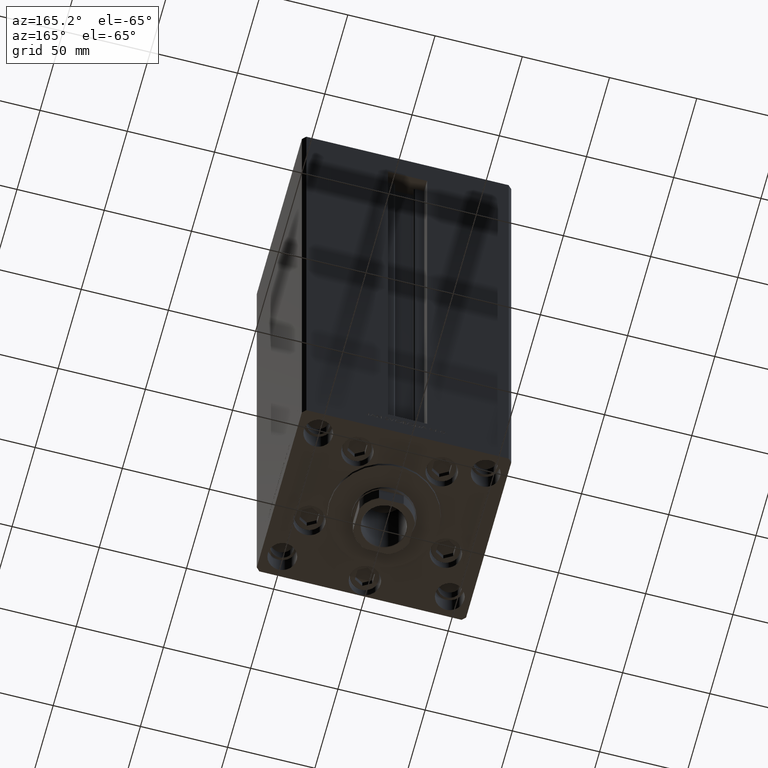
[diagram: clean part render]
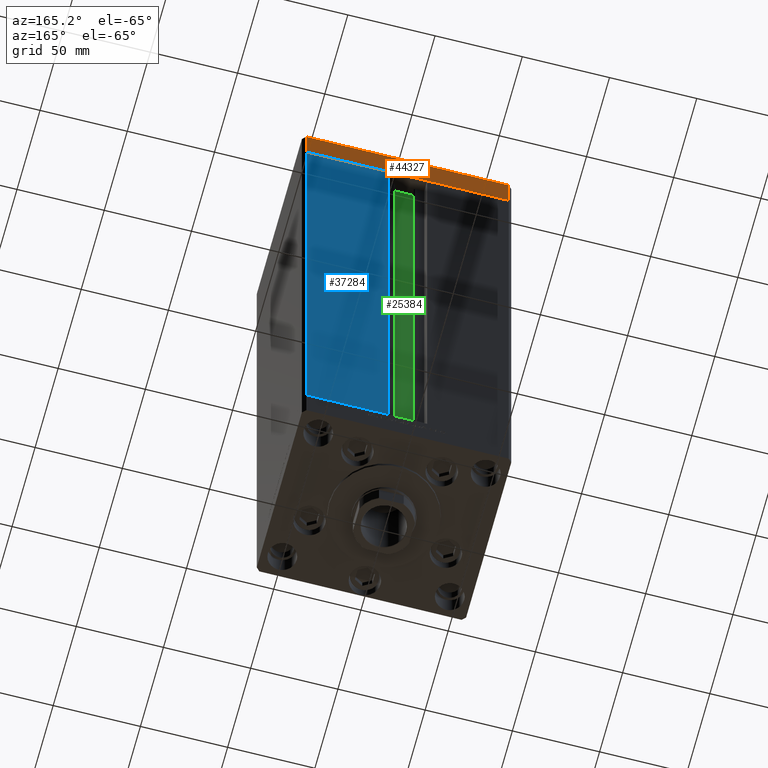
[diagram: same view with three faces highlighted in distinct colors, each labeled with its STEP entity id]
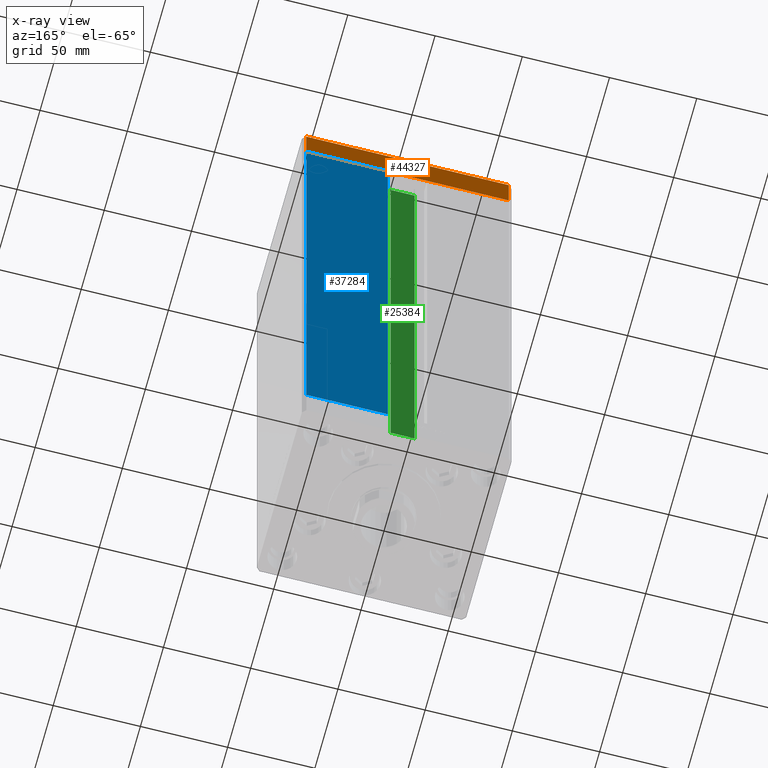
[diagram: x-ray of the same camera — body ghosted, the three highlighted faces saturated]
A machine part, auxiliary view with three faces highlighted in distinct colors.
The next image is the same camera in x-ray (body ghosted, the three faces saturated) — at least one of them is partly hidden behind the body in this view.
Their STEP definitions:

[orange] entity #44327 — the highlighted planar face has unit normal (-0, 1, 0).
#192 = PLANE ( 'NONE',  #8325 ) ;
#687 = DIRECTION ( 'NONE',  ( -2.392722035830079958E-16, 1.000000000000000000, 0.000000000000000000 ) ) ;
#1717 = LINE ( 'NONE', #29236, #39914 ) ;
#1963 = VECTOR ( 'NONE', #23100, 1000.000000000000000 ) ;
#5014 = LINE ( 'NONE', #47741, #8327 ) ;
#5460 = DIRECTION ( 'NONE',  ( -1.000000000000000000, -2.392722035830079958E-16, 0.000000000000000000 ) ) ;
#5479 = ORIENTED_EDGE ( 'NONE', *, *, #30931, .F. ) ;
#5684 = CARTESIAN_POINT ( 'NONE',  ( -57.99999999999999289, 50.99999999999997868, -20.00000000000000000 ) ) ;
#7938 = CARTESIAN_POINT ( 'NONE',  ( -57.99999999999999289, 50.99999999999997868, -20.00000000000000000 ) ) ;
#8271 = VERTEX_POINT ( 'NONE', #12720 ) ;
#8325 = AXIS2_PLACEMENT_3D ( 'NONE', #34751, #687, #38716 ) ;
#8327 = VECTOR ( 'NONE', #13684, 1000.000000000000000 ) ;
#10698 = CARTESIAN_POINT ( 'NONE',  ( 57.99999999999993605, 51.00000000000000711, 0.000000000000000000 ) ) ;
#12700 = DIRECTION ( 'NONE',  ( 0.000000000000000000, 0.000000000000000000, 1.000000000000000000 ) ) ;
#12720 = CARTESIAN_POINT ( 'NONE',  ( -57.99999999999999289, 50.99999999999997868, 0.000000000000000000 ) ) ;
#13683 = EDGE_CURVE ( 'NONE', #47765, #40312, #1717, .T. ) ;
#13684 = DIRECTION ( 'NONE',  ( -1.000000000000000000, -2.392722035830079958E-16, 0.000000000000000000 ) ) ;
#15366 = VERTEX_POINT ( 'NONE', #10698 ) ;
#15601 = FACE_OUTER_BOUND ( 'NONE', #20707, .T. ) ;
#18740 = EDGE_CURVE ( 'NONE', #40312, #8271, #41985, .T. ) ;
#20707 = EDGE_LOOP ( 'NONE', ( #21646, #5479, #46840, #42572 ) ) ;
#21646 = ORIENTED_EDGE ( 'NONE', *, *, #40925, .F. ) ;
#22698 = CARTESIAN_POINT ( 'NONE',  ( 57.99999999999993605, 51.00000000000000711, -20.00000000000000000 ) ) ;
#23100 = DIRECTION ( 'NONE',  ( 0.000000000000000000, 0.000000000000000000, 1.000000000000000000 ) ) ;
#26097 = VECTOR ( 'NONE', #12700, 1000.000000000000000 ) ;
#29236 = CARTESIAN_POINT ( 'NONE',  ( 57.99999999999993605, 51.00000000000000711, -20.00000000000000000 ) ) ;
#30931 = EDGE_CURVE ( 'NONE', #47765, #15366, #43750, .T. ) ;
#34751 = CARTESIAN_POINT ( 'NONE',  ( 57.99999999999993605, 51.00000000000000711, -20.00000000000000000 ) ) ;
#38716 = DIRECTION ( 'NONE',  ( -1.000000000000000000, -2.392722035830079958E-16, 0.000000000000000000 ) ) ;
#39297 = CARTESIAN_POINT ( 'NONE',  ( 57.99999999999993605, 51.00000000000000711, -20.00000000000000000 ) ) ;
#39914 = VECTOR ( 'NONE', #5460, 1000.000000000000000 ) ;
#40312 = VERTEX_POINT ( 'NONE', #5684 ) ;
#40925 = EDGE_CURVE ( 'NONE', #15366, #8271, #5014, .T. ) ;
#41985 = LINE ( 'NONE', #7938, #1963 ) ;
#42572 = ORIENTED_EDGE ( 'NONE', *, *, #18740, .T. ) ;
#43750 = LINE ( 'NONE', #39297, #26097 ) ;
#44327 = ADVANCED_FACE ( 'NONE', ( #15601 ), #192, .T. ) ;
#46840 = ORIENTED_EDGE ( 'NONE', *, *, #13683, .T. ) ;
#47741 = CARTESIAN_POINT ( 'NONE',  ( 57.99999999999993605, 51.00000000000000711, 0.000000000000000000 ) ) ;
#47765 = VERTEX_POINT ( 'NONE', #22698 ) ;

[blue] entity #37284 — the highlighted planar face has unit normal (-0, -1, 0).
#74 = VERTEX_POINT ( 'NONE', #40148 ) ;
#1214 = CARTESIAN_POINT ( 'NONE',  ( -11.25000000000000178, 51.00000000000000000, 318.5000000000000000 ) ) ;
#2176 = CARTESIAN_POINT ( 'NONE',  ( 11.25000000000000178, 51.00000000000000000, 0.000000000000000000 ) ) ;
#3399 = LINE ( 'NONE', #30240, #48015 ) ;
#7558 = EDGE_CURVE ( 'NONE', #74, #28219, #23108, .T. ) ;
#7608 = DIRECTION ( 'NONE',  ( -1.000000000000000000, 1.484255380514915423E-16, 0.000000000000000000 ) ) ;
#11707 = VECTOR ( 'NONE', #42234, 1000.000000000000000 ) ;
#12857 = LINE ( 'NONE', #2176, #23747 ) ;
#13871 = CARTESIAN_POINT ( 'NONE',  ( 57.99999999999999289, 51.00000000000000711, 318.5000000000000000 ) ) ;
#13957 = ORIENTED_EDGE ( 'NONE', *, *, #7558, .T. ) ;
#15130 = ORIENTED_EDGE ( 'NONE', *, *, #45231, .T. ) ;
#15810 = PLANE ( 'NONE',  #30919 ) ;
#16040 = DIRECTION ( 'NONE',  ( -1.484255380514915670E-16, -1.000000000000000000, 0.000000000000000000 ) ) ;
#19288 = CARTESIAN_POINT ( 'NONE',  ( -11.25000000000000178, 51.00000000000000000, 318.5000000000000000 ) ) ;
#19539 = DIRECTION ( 'NONE',  ( 1.000000000000000000, -1.484255380514915670E-16, 0.000000000000000000 ) ) ;
#20638 = ORIENTED_EDGE ( 'NONE', *, *, #37102, .T. ) ;
#20884 = VERTEX_POINT ( 'NONE', #46292 ) ;
#21580 = DIRECTION ( 'NONE',  ( -0.000000000000000000, -0.000000000000000000, -1.000000000000000000 ) ) ;
#23108 = LINE ( 'NONE', #1214, #11707 ) ;
#23747 = VECTOR ( 'NONE', #43177, 1000.000000000000000 ) ;
#24177 = ORIENTED_EDGE ( 'NONE', *, *, #26011, .T. ) ;
#26011 = EDGE_CURVE ( 'NONE', #28219, #45732, #47928, .T. ) ;
#26496 = FACE_OUTER_BOUND ( 'NONE', #47809, .T. ) ;
#28219 = VERTEX_POINT ( 'NONE', #48230 ) ;
#30240 = CARTESIAN_POINT ( 'NONE',  ( -11.25000000000000178, 51.00000000000000000, 0.000000000000000000 ) ) ;
#30919 = AXIS2_PLACEMENT_3D ( 'NONE', #19288, #16040, #19539 ) ;
#37102 = EDGE_CURVE ( 'NONE', #20884, #74, #12857, .T. ) ;
#37284 = ADVANCED_FACE ( 'NONE', ( #26496 ), #15810, .F. ) ;
#37808 = VECTOR ( 'NONE', #21580, 1000.000000000000000 ) ;
#39602 = CARTESIAN_POINT ( 'NONE',  ( 57.99999999999999289, 51.00000000000000711, 0.000000000000000000 ) ) ;
#40148 = CARTESIAN_POINT ( 'NONE',  ( 11.24999999999999467, 51.00000000000000000, 318.5000000000000000 ) ) ;
#42234 = DIRECTION ( 'NONE',  ( 1.000000000000000000, 0.000000000000000000, 0.000000000000000000 ) ) ;
#43177 = DIRECTION ( 'NONE',  ( -0.000000000000000000, -0.000000000000000000, 1.000000000000000000 ) ) ;
#45231 = EDGE_CURVE ( 'NONE', #45732, #20884, #3399, .T. ) ;
#45732 = VERTEX_POINT ( 'NONE', #39602 ) ;
#46292 = CARTESIAN_POINT ( 'NONE',  ( 11.25000000000000178, 51.00000000000000000, 0.000000000000000000 ) ) ;
#47809 = EDGE_LOOP ( 'NONE', ( #15130, #20638, #13957, #24177 ) ) ;
#47928 = LINE ( 'NONE', #13871, #37808 ) ;
#48015 = VECTOR ( 'NONE', #7608, 1000.000000000000000 ) ;
#48230 = CARTESIAN_POINT ( 'NONE',  ( 57.99999999999999289, 51.00000000000000711, 318.5000000000000000 ) ) ;

[green] entity #25384 — the highlighted planar face has unit normal (0, -1, 0).
#425 = FACE_OUTER_BOUND ( 'NONE', #3566, .T. ) ;
#3566 = EDGE_LOOP ( 'NONE', ( #22298, #19246, #27952, #31950 ) ) ;
#3806 = LINE ( 'NONE', #30157, #28397 ) ;
#6136 = EDGE_CURVE ( 'NONE', #36494, #18427, #8556, .T. ) ;
#6672 = VECTOR ( 'NONE', #22573, 1000.000000000000000 ) ;
#7405 = LINE ( 'NONE', #37999, #6672 ) ;
#8155 = EDGE_CURVE ( 'NONE', #17070, #26983, #3806, .T. ) ;
#8556 = LINE ( 'NONE', #20230, #12444 ) ;
#8629 = PLANE ( 'NONE',  #20350 ) ;
#10428 = EDGE_CURVE ( 'NONE', #26983, #18427, #46628, .T. ) ;
#12444 = VECTOR ( 'NONE', #31410, 1000.000000000000000 ) ;
#15590 = DIRECTION ( 'NONE',  ( 0.000000000000000000, -1.000000000000000000, -0.000000000000000000 ) ) ;
#16632 = EDGE_CURVE ( 'NONE', #36494, #17070, #7405, .T. ) ;
#17070 = VERTEX_POINT ( 'NONE', #33422 ) ;
#18427 = VERTEX_POINT ( 'NONE', #38322 ) ;
#19246 = ORIENTED_EDGE ( 'NONE', *, *, #16632, .F. ) ;
#20230 = CARTESIAN_POINT ( 'NONE',  ( -6.876153656360466826, 40.49999999999987210, 0.000000000000000000 ) ) ;
#20280 = CARTESIAN_POINT ( 'NONE',  ( 0.000000000000000000, 40.49999999999987210, 318.5000000000000000 ) ) ;
#20350 = AXIS2_PLACEMENT_3D ( 'NONE', #23786, #15590, #41692 ) ;
#21650 = CARTESIAN_POINT ( 'NONE',  ( -6.876153656360466826, 40.49999999999987210, 0.000000000000000000 ) ) ;
#22298 = ORIENTED_EDGE ( 'NONE', *, *, #8155, .F. ) ;
#22573 = DIRECTION ( 'NONE',  ( 1.000000000000000000, -0.000000000000000000, -0.000000000000000000 ) ) ;
#23786 = CARTESIAN_POINT ( 'NONE',  ( 6.876153656360466826, 40.49999999999987210, 0.000000000000000000 ) ) ;
#25384 = ADVANCED_FACE ( 'NONE', ( #425 ), #8629, .F. ) ;
#26983 = VERTEX_POINT ( 'NONE', #29117 ) ;
#27750 = DIRECTION ( 'NONE',  ( -1.000000000000000000, 0.000000000000000000, 0.000000000000000000 ) ) ;
#27952 = ORIENTED_EDGE ( 'NONE', *, *, #6136, .T. ) ;
#28397 = VECTOR ( 'NONE', #45303, 1000.000000000000000 ) ;
#29117 = CARTESIAN_POINT ( 'NONE',  ( 6.876153656360466826, 40.49999999999987210, 318.5000000000000000 ) ) ;
#30157 = CARTESIAN_POINT ( 'NONE',  ( 6.876153656360466826, 40.49999999999987210, 0.000000000000000000 ) ) ;
#31410 = DIRECTION ( 'NONE',  ( -0.000000000000000000, -0.000000000000000000, 1.000000000000000000 ) ) ;
#31950 = ORIENTED_EDGE ( 'NONE', *, *, #10428, .F. ) ;
#33422 = CARTESIAN_POINT ( 'NONE',  ( 6.876153656360466826, 40.49999999999987210, 0.000000000000000000 ) ) ;
#36494 = VERTEX_POINT ( 'NONE', #21650 ) ;
#37999 = CARTESIAN_POINT ( 'NONE',  ( 6.876153656360466826, 40.49999999999987210, 0.000000000000000000 ) ) ;
#38322 = CARTESIAN_POINT ( 'NONE',  ( -6.876153656360466826, 40.49999999999987210, 318.5000000000000000 ) ) ;
#41692 = DIRECTION ( 'NONE',  ( 0.000000000000000000, 0.000000000000000000, -1.000000000000000000 ) ) ;
#45303 = DIRECTION ( 'NONE',  ( -0.000000000000000000, -0.000000000000000000, 1.000000000000000000 ) ) ;
#46628 = LINE ( 'NONE', #20280, #46955 ) ;
#46955 = VECTOR ( 'NONE', #27750, 1000.000000000000000 ) ;